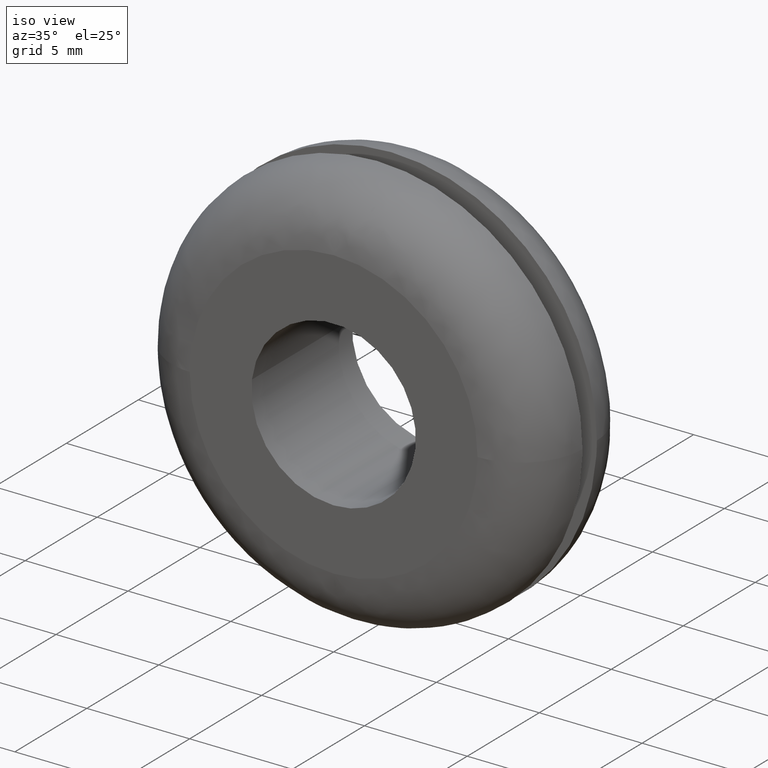
[diagram: clean part render]
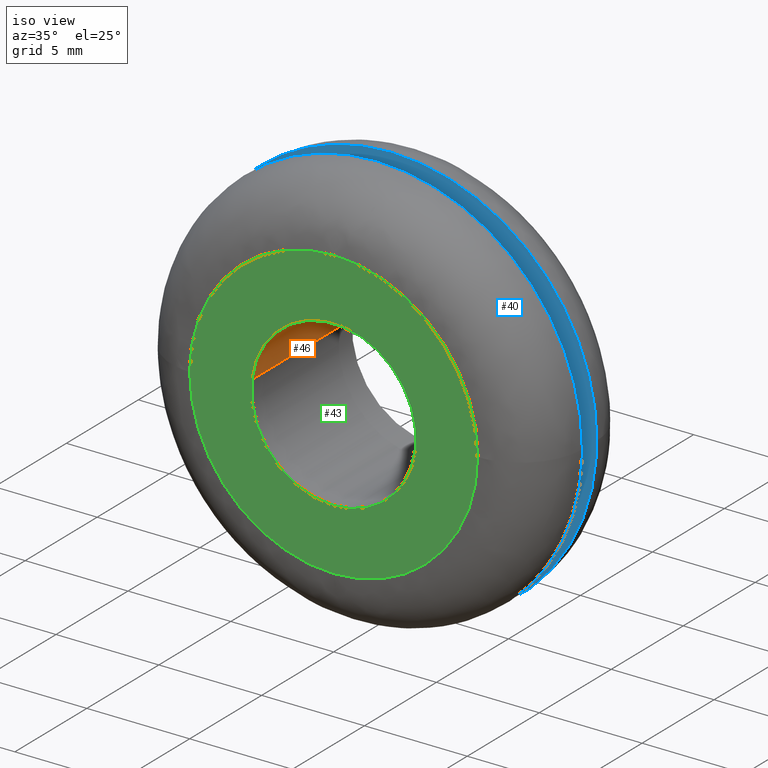
[diagram: same view with three faces highlighted in distinct colors, each labeled with its STEP entity id]
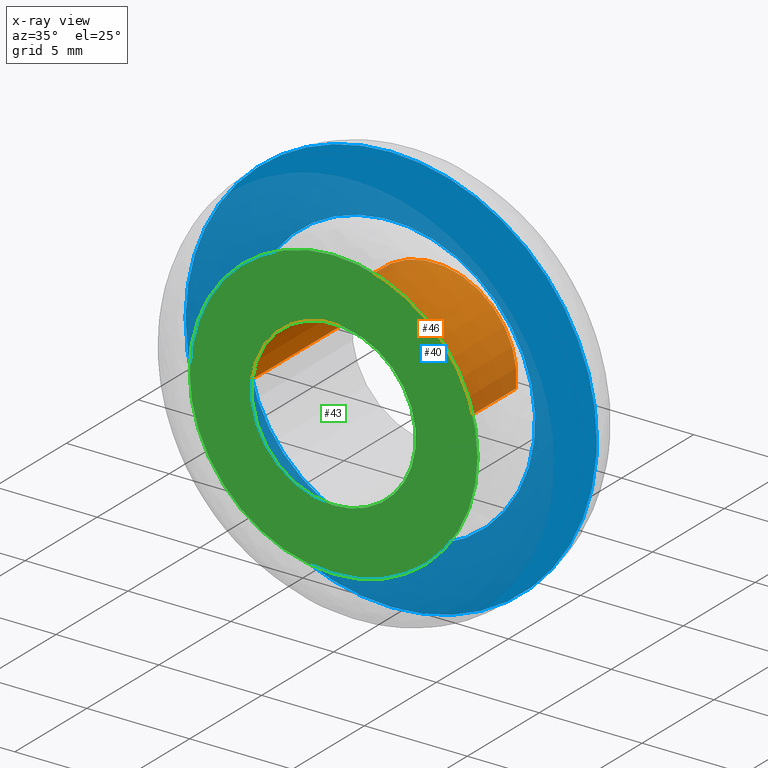
[diagram: x-ray of the same camera — body ghosted, the three highlighted faces saturated]
A machine part, iso view with three faces highlighted in distinct colors.
The next image is the same camera in x-ray (body ghosted, the three faces saturated) — at least one of them is partly hidden behind the body in this view.
Their STEP definitions:

[orange] entity #46 — the highlighted cylindrical surface (partial cylindrical patch) has radius 4 mm, axis along (-0, 1, -0).
#46=ADVANCED_FACE('',(#117),#116,.F.);
#116=CYLINDRICAL_SURFACE('',#213,4.00000000000E+000);
#117=FACE_OUTER_BOUND('',#214,.T.);
#210=CARTESIAN_POINT('',(7.00264927072E-017,7.17500000000E+000,-1.45260831833E-015));
#211=DIRECTION('',(-4.60583929913E-017,1.00000000000E+000,-3.87484386562E-016));
#212=DIRECTION('',(-9.93009526364E-001,-1.47911419729E-031,1.18034234657E-001));
#213=AXIS2_PLACEMENT_3D('',#210,#211,#212);
#214=EDGE_LOOP('',(#364,#365,#366,#367));
#364=ORIENTED_EDGE('',*,*,#428,.T.);
#365=ORIENTED_EDGE('',*,*,#432,.T.);
#366=ORIENTED_EDGE('',*,*,#413,.F.);
#367=ORIENTED_EDGE('',*,*,#433,.F.);
#413=EDGE_CURVE('',#523,#530,#531,.T.);
#428=EDGE_CURVE('',#635,#627,#636,.T.);
#432=EDGE_CURVE('',#627,#530,#660,.T.);
#433=EDGE_CURVE('',#635,#523,#666,.T.);
#523=VERTEX_POINT('',#757);
#530=VERTEX_POINT('',#762);
#531=CIRCLE('',#766,3.99999999999E+000);
#627=VERTEX_POINT('',#831);
#635=VERTEX_POINT('',#837);
#636=CIRCLE('',#841,3.99999999999E+000);
#660=(BOUNDED_CURVE() B_SPLINE_CURVE(1,(#850,#851),.UNSPECIFIED.,.F.,.F.) B_SPLINE_CURVE_WITH_KNOTS((2,2),(8.33333320912E-002,9.16666664070E-001),.UNSPECIFIED.) CURVE() GEOMETRIC_REPRESENTATION_ITEM() RATIONAL_B_SPLINE_CURVE((1.00000000000E+000,1.00000000000E+000)) REPRESENTATION_ITEM('') );
#666=(BOUNDED_CURVE() B_SPLINE_CURVE(1,(#852,#853),.UNSPECIFIED.,.F.,.F.) B_SPLINE_CURVE_WITH_KNOTS((2,2),(8.33333333333E-002,9.16666666667E-001),.UNSPECIFIED.) CURVE() GEOMETRIC_REPRESENTATION_ITEM() RATIONAL_B_SPLINE_CURVE((7.50000000000E-001,7.50000000000E-001)) REPRESENTATION_ITEM('') );
#757=CARTESIAN_POINT('',(3.97195644362E+000,7.00000000000E+000,-4.72823444808E-001));
#762=CARTESIAN_POINT('',(-3.97203827810E+000,7.00000000000E+000,4.72135486074E-001));
#763=CARTESIAN_POINT('',(4.21995771660E-012,7.00000000000E+000,9.28590537796E-012));
#764=DIRECTION('',(-3.85388332588E-016,-1.00000000000E+000,5.20152082582E-016));
#765=DIRECTION('',(-1.05444819543E-012,-5.20152082582E-016,-1.00000000000E+000));
#766=AXIS2_PLACEMENT_3D('',#763,#764,#765);
#831=CARTESIAN_POINT('',(-3.97203827810E+000,-9.65354450602E-016,4.72135486074E-001));
#837=CARTESIAN_POINT('',(3.97195644362E+000,-8.50424636902E-016,-4.72823444808E-001));
#838=CARTESIAN_POINT('',(4.11959355517E-012,-9.07720911599E-016,9.06452690685E-012));
#839=DIRECTION('',(7.17672487400E-017,-1.00000000000E+000,4.81702237639E-016));
#840=DIRECTION('',(-1.03005104446E-012,-4.81702237639E-016,-1.00000000000E+000));
#841=AXIS2_PLACEMENT_3D('',#838,#839,#840);
#850=CARTESIAN_POINT('',(-3.97203810545E+000,-1.04336150830E-008,4.72136938627E-001));
#851=CARTESIAN_POINT('',(-3.97203810545E+000,6.99999997819E+000,4.72136938627E-001));
#852=CARTESIAN_POINT('',(3.97203810545E+000,-1.11022302463E-015,-4.72136938627E-001));
#853=CARTESIAN_POINT('',(3.97203810545E+000,7.00000000000E+000,-4.72136938627E-001));

[blue] entity #40 — the highlighted planar face has unit normal (0, 1, 0).
#40=ADVANCED_FACE('',(#53,#54),#52,.F.);
#52=PLANE('',#179);
#53=FACE_OUTER_BOUND('',#180,.T.);
#54=FACE_BOUND('',#181,.T.);
#176=CARTESIAN_POINT('',(-1.22114496217E+001,4.00000000000E+000,-1.20000000000E+001));
#177=DIRECTION('',(0.00000000000E+000,1.00000000000E+000,0.00000000000E+000));
#178=DIRECTION('',(0.00000000000E+000,0.00000000000E+000,1.00000000000E+000));
#179=AXIS2_PLACEMENT_3D('',#176,#177,#178);
#180=EDGE_LOOP('',(#324,#325,#326,#327,#328,#329));
#181=EDGE_LOOP('',(#330,#331,#332));
#324=ORIENTED_EDGE('',*,*,#400,.T.);
#325=ORIENTED_EDGE('',*,*,#401,.T.);
#326=ORIENTED_EDGE('',*,*,#402,.T.);
#327=ORIENTED_EDGE('',*,*,#403,.T.);
#328=ORIENTED_EDGE('',*,*,#404,.T.);
#329=ORIENTED_EDGE('',*,*,#405,.T.);
#330=ORIENTED_EDGE('',*,*,#406,.F.);
#331=ORIENTED_EDGE('',*,*,#407,.F.);
#332=ORIENTED_EDGE('',*,*,#408,.F.);
#400=EDGE_CURVE('',#438,#439,#440,.T.);
#401=EDGE_CURVE('',#439,#446,#447,.T.);
#402=EDGE_CURVE('',#446,#453,#454,.T.);
#403=EDGE_CURVE('',#453,#460,#461,.T.);
#404=EDGE_CURVE('',#460,#467,#468,.T.);
#405=EDGE_CURVE('',#467,#438,#474,.T.);
#406=EDGE_CURVE('',#480,#481,#482,.T.);
#407=EDGE_CURVE('',#488,#480,#489,.T.);
#408=EDGE_CURVE('',#481,#488,#495,.T.);
#438=VERTEX_POINT('',#696);
#439=VERTEX_POINT('',#697);
#440=CIRCLE('',#701,1.00000000007E+001);
#446=VERTEX_POINT('',#702);
#447=CIRCLE('',#706,1.00000000000E+001);
#453=VERTEX_POINT('',#707);
#454=CIRCLE('',#711,1.00000000000E+001);
#460=VERTEX_POINT('',#712);
#461=CIRCLE('',#716,1.00000000000E+001);
#467=VERTEX_POINT('',#717);
#468=CIRCLE('',#721,1.00000000000E+001);
#474=CIRCLE('',#725,1.00000000000E+001);
#480=VERTEX_POINT('',#726);
#481=VERTEX_POINT('',#727);
#482=CIRCLE('',#731,7.00000000000E+000);
#488=VERTEX_POINT('',#732);
#489=CIRCLE('',#736,7.00000000000E+000);
#495=CIRCLE('',#740,7.00000000000E+000);
#696=CARTESIAN_POINT('',(0.00000000000E+000,4.00000000000E+000,-1.00000000000E+001));
#697=CARTESIAN_POINT('',(9.97565673832E+000,4.00000000002E+000,-6.97332517021E-001));
#698=CARTESIAN_POINT('',(-6.29946761421E-010,4.00000000002E+000,6.75516531601E-010));
#699=DIRECTION('',(9.42055475210E-017,-1.00000000000E+000,2.20810036907E-012));
#700=DIRECTION('',(-6.29946761379E-011,2.20810036907E-012,1.00000000000E+000));
#701=AXIS2_PLACEMENT_3D('',#698,#699,#700);
#702=CARTESIAN_POINT('',(9.99999999304E+000,3.99999999998E+000,3.73214900256E-004));
#703=CARTESIAN_POINT('',(5.32907051820E-015,4.00000000003E+000,7.99360577730E-015));
#704=DIRECTION('',(-5.29288276948E-012,-1.00000000000E+000,-5.86217477565E-011));
#705=DIRECTION('',(-9.97565673832E-001,1.19211307492E-012,6.97332517021E-002));
#706=AXIS2_PLACEMENT_3D('',#703,#704,#705);
#707=CARTESIAN_POINT('',(0.00000000000E+000,4.00000000000E+000,1.00000000000E+001));
#708=CARTESIAN_POINT('',(5.32907051820E-015,4.00000000003E+000,7.99360577730E-015));
#709=DIRECTION('',(-5.29288276948E-012,-1.00000000000E+000,-5.86217477565E-011));
#710=DIRECTION('',(-9.97565673832E-001,1.19211307492E-012,6.97332517021E-002));
#711=AXIS2_PLACEMENT_3D('',#708,#709,#710);
#712=CARTESIAN_POINT('',(-9.99921044204E+000,4.00000000002E+000,1.25660398839E-001));
#713=CARTESIAN_POINT('',(2.74003042477E-012,4.00000000002E+000,-2.77289302630E-012));
#714=DIRECTION('',(-9.18354961580E-041,-1.00000000000E+000,-2.07140971042E-012));
#715=DIRECTION('',(2.74003042477E-013,2.07140971042E-012,-1.00000000000E+000));
#716=AXIS2_PLACEMENT_3D('',#713,#714,#715);
#717=CARTESIAN_POINT('',(-1.00000000000E+001,3.99999999998E+000,3.22072480326E-013));
#718=CARTESIAN_POINT('',(-1.24344978758E-014,4.00000000003E+000,-1.33226762955E-014));
#719=DIRECTION('',(5.48787079013E-012,-1.00000000000E+000,3.25471571419E-010));
#720=DIRECTION('',(9.99921044204E-001,1.39754874340E-012,-1.25660398839E-002));
#721=AXIS2_PLACEMENT_3D('',#718,#719,#720);
#722=CARTESIAN_POINT('',(-1.24344978758E-014,4.00000000003E+000,-1.33226762955E-014));
#723=DIRECTION('',(5.48787079013E-012,-1.00000000000E+000,3.25471571419E-010));
#724=DIRECTION('',(9.99921044204E-001,1.39754874340E-012,-1.25660398839E-002));
#725=AXIS2_PLACEMENT_3D('',#722,#723,#724);
#726=CARTESIAN_POINT('',(-6.95106668455E+000,4.00000000000E+000,8.26239642538E-001));
#727=CARTESIAN_POINT('',(-1.11022302463E-015,4.00000000000E+000,-7.00000000000E+000));
#728=CARTESIAN_POINT('',(7.88258347484E-013,4.00000000000E+000,1.73772107814E-012));
#729=DIRECTION('',(-1.25995670315E-016,-1.00000000000E+000,1.49764217742E-017));
#730=DIRECTION('',(-1.12382325668E-013,-1.49764217742E-017,-1.00000000000E+000));
#731=AXIS2_PLACEMENT_3D('',#728,#729,#730);
#732=CARTESIAN_POINT('',(6.95092377733E+000,4.00000000000E+000,-8.27441020072E-001));
#733=CARTESIAN_POINT('',(7.88258347484E-013,4.00000000000E+000,1.73772107814E-012));
#734=DIRECTION('',(-1.25995670315E-016,-1.00000000000E+000,1.49764217742E-017));
#735=DIRECTION('',(-1.12382325668E-013,-1.49764217742E-017,-1.00000000000E+000));
#736=AXIS2_PLACEMENT_3D('',#733,#734,#735);
#737=CARTESIAN_POINT('',(7.88258347484E-013,4.00000000000E+000,1.73772107814E-012));
#738=DIRECTION('',(-1.25995670315E-016,-1.00000000000E+000,1.49764217742E-017));
#739=DIRECTION('',(-1.12382325668E-013,-1.49764217742E-017,-1.00000000000E+000));
#740=AXIS2_PLACEMENT_3D('',#737,#738,#739);

[green] entity #43 — the highlighted planar face has unit normal (0, 1, 0).
#43=ADVANCED_FACE('',(#86,#87),#85,.F.);
#85=PLANE('',#197);
#86=FACE_OUTER_BOUND('',#198,.T.);
#87=FACE_BOUND('',#199,.T.);
#194=CARTESIAN_POINT('',(-1.45492267837E+001,-1.03351600000E-015,-1.61000000001E+001));
#195=DIRECTION('',(0.00000000000E+000,1.00000000000E+000,0.00000000000E+000));
#196=DIRECTION('',(0.00000000000E+000,0.00000000000E+000,1.00000000000E+000));
#197=AXIS2_PLACEMENT_3D('',#194,#195,#196);
#198=EDGE_LOOP('',(#348,#349,#350));
#199=EDGE_LOOP('',(#351,#352,#353));
#348=ORIENTED_EDGE('',*,*,#424,.T.);
#349=ORIENTED_EDGE('',*,*,#425,.T.);
#350=ORIENTED_EDGE('',*,*,#426,.T.);
#351=ORIENTED_EDGE('',*,*,#427,.F.);
#352=ORIENTED_EDGE('',*,*,#428,.F.);
#353=ORIENTED_EDGE('',*,*,#429,.F.);
#424=EDGE_CURVE('',#606,#607,#608,.T.);
#425=EDGE_CURVE('',#607,#614,#615,.T.);
#426=EDGE_CURVE('',#614,#606,#621,.T.);
#427=EDGE_CURVE('',#627,#628,#629,.T.);
#428=EDGE_CURVE('',#635,#627,#636,.T.);
#429=EDGE_CURVE('',#628,#635,#642,.T.);
#606=VERTEX_POINT('',#816);
#607=VERTEX_POINT('',#817);
#608=CIRCLE('',#821,7.00000000004E+000);
#614=VERTEX_POINT('',#822);
#615=CIRCLE('',#826,7.00000000004E+000);
#621=CIRCLE('',#830,7.00000000004E+000);
#627=VERTEX_POINT('',#831);
#628=VERTEX_POINT('',#832);
#629=CIRCLE('',#836,3.99999999999E+000);
#635=VERTEX_POINT('',#837);
#636=CIRCLE('',#841,3.99999999999E+000);
#642=CIRCLE('',#845,3.99999999999E+000);
#816=CARTESIAN_POINT('',(-3.09538817939E-017,1.18791237333E-015,7.00000000008E+000));
#817=CARTESIAN_POINT('',(-7.00000000005E+000,-7.21778133416E-017,-2.76227249042E-015));
#818=CARTESIAN_POINT('',(-7.58548779345E-012,-7.21778133341E-017,4.16320311558E-011));
#819=DIRECTION('',(-3.77106790575E-033,-1.00000000000E+000,1.80012883808E-016));
#820=DIRECTION('',(1.08351423072E-012,1.80012883808E-016,1.00000000000E+000));
#821=AXIS2_PLACEMENT_3D('',#818,#819,#820);
#822=CARTESIAN_POINT('',(6.99999996234E+000,-7.23085905043E-017,-7.26487793142E-004));
#823=CARTESIAN_POINT('',(-7.58548779345E-012,-7.21778133341E-017,4.16320311558E-011));
#824=DIRECTION('',(-3.77106790575E-033,-1.00000000000E+000,1.80012883808E-016));
#825=DIRECTION('',(1.08351423072E-012,1.80012883808E-016,1.00000000000E+000));
#826=AXIS2_PLACEMENT_3D('',#823,#824,#825);
#827=CARTESIAN_POINT('',(-7.58548779345E-012,-7.21778133341E-017,4.16320311558E-011));
#828=DIRECTION('',(-3.77106790575E-033,-1.00000000000E+000,1.80012883808E-016));
#829=DIRECTION('',(1.08351423072E-012,1.80012883808E-016,1.00000000000E+000));
#830=AXIS2_PLACEMENT_3D('',#827,#828,#829);
#831=CARTESIAN_POINT('',(-3.97203827810E+000,-9.65354450602E-016,4.72135486074E-001));
#832=CARTESIAN_POINT('',(-2.05391259556E-015,-2.83452986215E-015,-3.99999999998E+000));
#833=CARTESIAN_POINT('',(4.11959355517E-012,-9.07720911599E-016,9.06452690685E-012));
#834=DIRECTION('',(7.17672487400E-017,-1.00000000000E+000,4.81702237639E-016));
#835=DIRECTION('',(-1.03005104446E-012,-4.81702237639E-016,-1.00000000000E+000));
#836=AXIS2_PLACEMENT_3D('',#833,#834,#835);
#837=CARTESIAN_POINT('',(3.97195644362E+000,-8.50424636902E-016,-4.72823444808E-001));
#838=CARTESIAN_POINT('',(4.11959355517E-012,-9.07720911599E-016,9.06452690685E-012));
#839=DIRECTION('',(7.17672487400E-017,-1.00000000000E+000,4.81702237639E-016));
#840=DIRECTION('',(-1.03005104446E-012,-4.81702237639E-016,-1.00000000000E+000));
#841=AXIS2_PLACEMENT_3D('',#838,#839,#840);
#842=CARTESIAN_POINT('',(4.11959355517E-012,-9.07720911599E-016,9.06452690685E-012));
#843=DIRECTION('',(7.17672487400E-017,-1.00000000000E+000,4.81702237639E-016));
#844=DIRECTION('',(-1.03005104446E-012,-4.81702237639E-016,-1.00000000000E+000));
#845=AXIS2_PLACEMENT_3D('',#842,#843,#844);